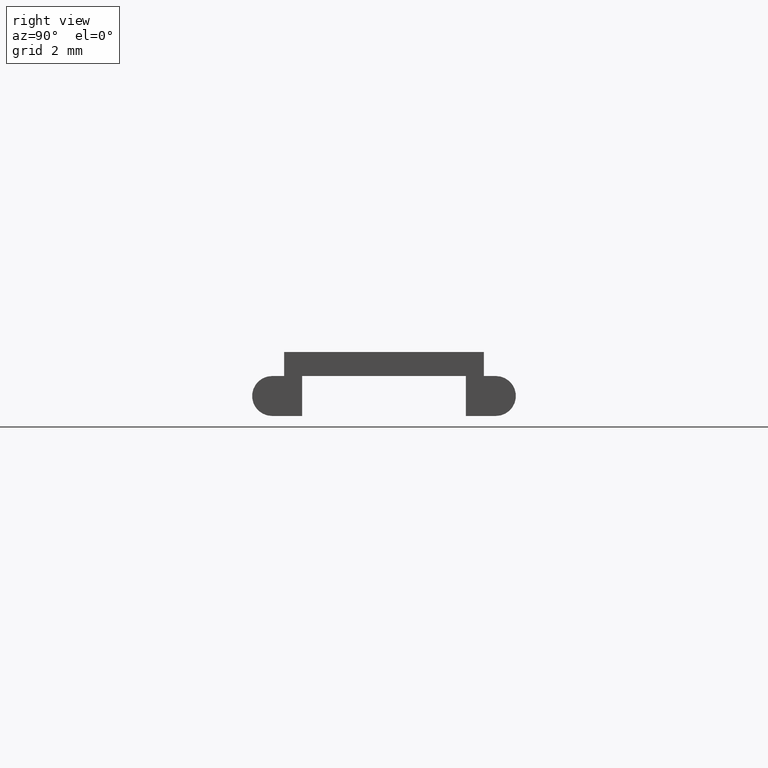
[diagram: clean part render]
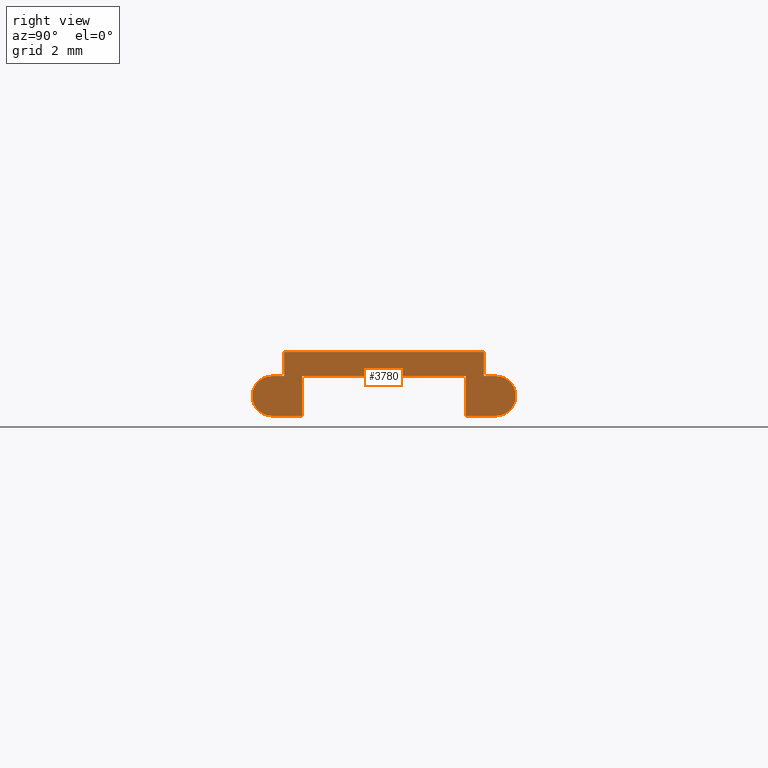
[diagram: same view with one face highlighted and labeled with its STEP entity id]
A machine part, right view. The second image highlights one B-rep face of the part: STEP entity #3780.
In plain terms, the highlighted planar face has unit normal (1, 0, 0).
Its self-contained STEP definition (entity closure, byte-faithful):
#200=CARTESIAN_POINT('',(381.426447634406,987.424347545384,
0.0999999999999876));
#210=VERTEX_POINT('',#200);
#240=CARTESIAN_POINT('',(381.426447634406,0.,0.100000000000048));
#250=DIRECTION('',(0.,-1.,6.12323399573677E-17));
#260=VECTOR('',#250,1.);
#270=LINE('',#240,#260);
#280=CARTESIAN_POINT('',(381.426447634406,992.424347545384,
0.0999999999999873));
#290=VERTEX_POINT('',#280);
#300=EDGE_CURVE('',#290,#210,#270,.T.);
#530=CARTESIAN_POINT('',(381.426447634406,987.424347545384,0.));
#540=DIRECTION('',(0.,0.,-1.));
#550=VECTOR('',#540,1.);
#560=LINE('',#530,#550);
#570=CARTESIAN_POINT('',(381.426447634406,987.424347545384,
-0.500000000000021));
#580=VERTEX_POINT('',#570);
#590=EDGE_CURVE('',#210,#580,#560,.T.);
#970=CARTESIAN_POINT('',(381.426447634406,991.974347545384,
-1.50000000000001));
#980=VERTEX_POINT('',#970);
#1130=CARTESIAN_POINT('',(381.426447634406,992.724347545384,
-1.50000000000001));
#1140=VERTEX_POINT('',#1130);
#1170=CARTESIAN_POINT('',(381.426447634406,0.,-1.49999999999995));
#1180=DIRECTION('',(0.,1.,-6.12323399573677E-17));
#1190=VECTOR('',#1180,1.);
#1200=LINE('',#1170,#1190);
#1210=EDGE_CURVE('',#980,#1140,#1200,.T.);
#1380=CARTESIAN_POINT('',(381.426447634406,0.,-0.500000000000021));
#1390=DIRECTION('',(0.,-1.,0.));
#1400=VECTOR('',#1390,1.);
#1410=LINE('',#1380,#1400);
#1420=CARTESIAN_POINT('',(381.426447634406,992.724347545384,
-0.500000000000021));
#1430=VERTEX_POINT('',#1420);
#1440=CARTESIAN_POINT('',(381.426447634406,992.424347545384,
-0.500000000000021));
#1450=VERTEX_POINT('',#1440);
#1460=EDGE_CURVE('',#1430,#1450,#1410,.T.);
#1850=CARTESIAN_POINT('',(381.426447634406,991.974347545384,0.));
#1860=DIRECTION('',(0.,0.,-1.));
#1870=VECTOR('',#1860,1.);
#1880=LINE('',#1850,#1870);
#1890=CARTESIAN_POINT('',(381.426447634406,991.974347545384,
-0.500000000000021));
#1900=VERTEX_POINT('',#1890);
#1910=EDGE_CURVE('',#1900,#980,#1880,.T.);
#2990=CARTESIAN_POINT('',(381.426447634406,987.874347545384,
-0.500000000000021));
#3000=VERTEX_POINT('',#2990);
#3050=CARTESIAN_POINT('',(381.426447634406,0.,-0.500000000000021));
#3060=DIRECTION('',(0.,1.,0.));
#3070=VECTOR('',#3060,1.);
#3080=LINE('',#3050,#3070);
#3090=EDGE_CURVE('',#3000,#1900,#3080,.T.);
#3210=CARTESIAN_POINT('',(381.426447634406,993.884349945384,
-1.50000000000001));
#3220=DIRECTION('',(-1.,0.,0.));
#3230=DIRECTION('',(0.,6.12323399573677E-17,1.));
#3240=AXIS2_PLACEMENT_3D('',#3210,#3220,#3230);
#3250=PLANE('',#3240);
#3260=CARTESIAN_POINT('',(381.426447634406,0.,-0.500000000000021));
#3270=DIRECTION('',(0.,-1.,0.));
#3280=VECTOR('',#3270,1.);
#3290=LINE('',#3260,#3280);
#3300=CARTESIAN_POINT('',(381.426447634406,987.124347545384,
-0.500000000000021));
#3310=VERTEX_POINT('',#3300);
#3320=EDGE_CURVE('',#580,#3310,#3290,.T.);
#3330=ORIENTED_EDGE('',*,*,#3320,.F.);
#3340=CARTESIAN_POINT('',(381.426447634406,987.124347545384,
-1.00000000000002));
#3350=DIRECTION('',(1.,0.,0.));
#3360=DIRECTION('',(0.,1.,0.));
#3370=AXIS2_PLACEMENT_3D('',#3340,#3350,#3360);
#3380=CIRCLE('',#3370,0.5);
#3390=CARTESIAN_POINT('',(381.426447634406,987.124347545384,
-1.50000000000002));
#3400=VERTEX_POINT('',#3390);
#3410=EDGE_CURVE('',#3310,#3400,#3380,.T.);
#3420=ORIENTED_EDGE('',*,*,#3410,.F.);
#3430=CARTESIAN_POINT('',(381.426447634406,0.,-1.49999999999995));
#3440=DIRECTION('',(0.,1.,-6.12323399573677E-17));
#3450=VECTOR('',#3440,1.);
#3460=LINE('',#3430,#3450);
#3470=CARTESIAN_POINT('',(381.426447634406,987.874347545384,
-1.50000000000001));
#3480=VERTEX_POINT('',#3470);
#3490=EDGE_CURVE('',#3400,#3480,#3460,.T.);
#3500=ORIENTED_EDGE('',*,*,#3490,.F.);
#3510=CARTESIAN_POINT('',(381.426447634406,987.874347545384,0.));
#3520=DIRECTION('',(0.,0.,1.));
#3530=VECTOR('',#3520,1.);
#3540=LINE('',#3510,#3530);
#3550=EDGE_CURVE('',#3480,#3000,#3540,.T.);
#3560=ORIENTED_EDGE('',*,*,#3550,.F.);
#3570=ORIENTED_EDGE('',*,*,#3090,.F.);
#3580=ORIENTED_EDGE('',*,*,#1910,.F.);
#3590=ORIENTED_EDGE('',*,*,#1210,.F.);
#3600=CARTESIAN_POINT('',(381.426447634406,992.724347545384,
-1.00000000000002));
#3610=DIRECTION('',(1.,0.,0.));
#3620=DIRECTION('',(0.,1.,0.));
#3630=AXIS2_PLACEMENT_3D('',#3600,#3610,#3620);
#3640=CIRCLE('',#3630,0.5);
#3650=EDGE_CURVE('',#1140,#1430,#3640,.T.);
#3660=ORIENTED_EDGE('',*,*,#3650,.F.);
#3670=ORIENTED_EDGE('',*,*,#1460,.F.);
#3680=CARTESIAN_POINT('',(381.426447634406,992.424347545384,0.));
#3690=DIRECTION('',(0.,0.,1.));
#3700=VECTOR('',#3690,1.);
#3710=LINE('',#3680,#3700);
#3720=EDGE_CURVE('',#1450,#290,#3710,.T.);
#3730=ORIENTED_EDGE('',*,*,#3720,.F.);
#3740=ORIENTED_EDGE('',*,*,#300,.F.);
#3750=ORIENTED_EDGE('',*,*,#590,.F.);
#3760=EDGE_LOOP('',(#3750,#3740,#3730,#3670,#3660,#3590,#3580,#3570,
#3560,#3500,#3420,#3330));
#3770=FACE_OUTER_BOUND('',#3760,.T.);
#3780=ADVANCED_FACE('',(#3770),#3250,.T.);